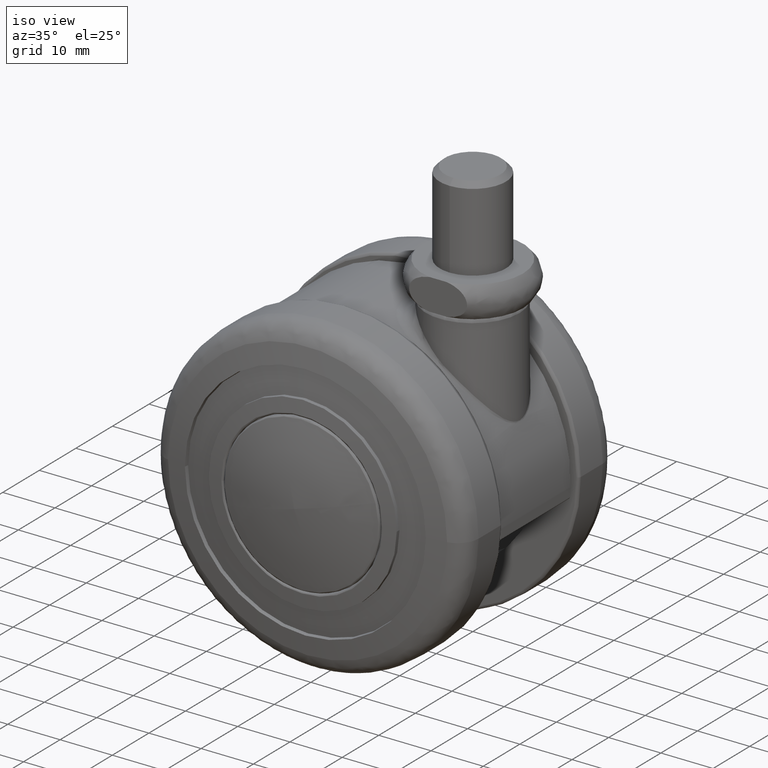
[diagram: clean part render]
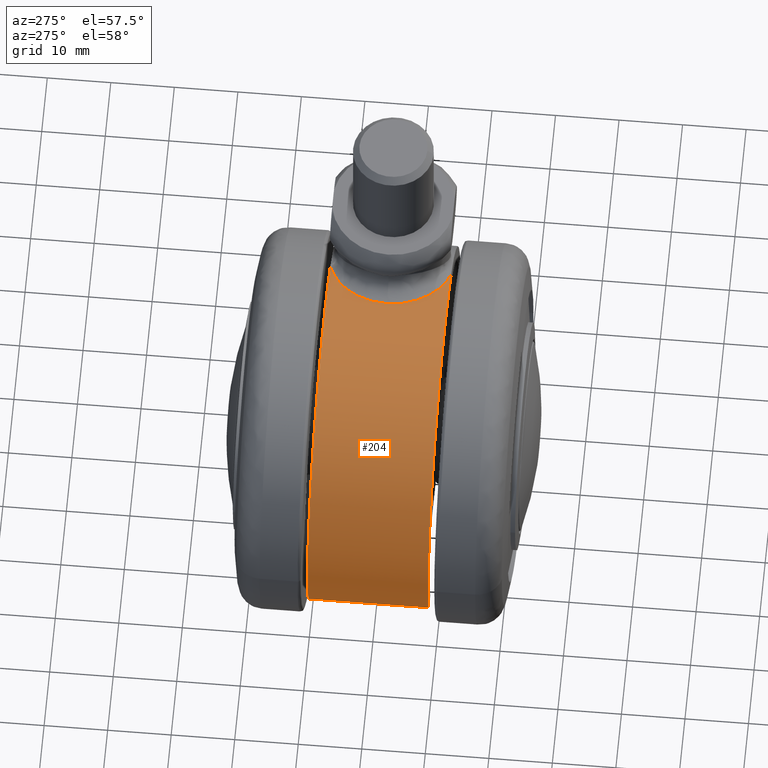
[diagram: tour spotlight — one face highlighted and labeled with its STEP entity id]
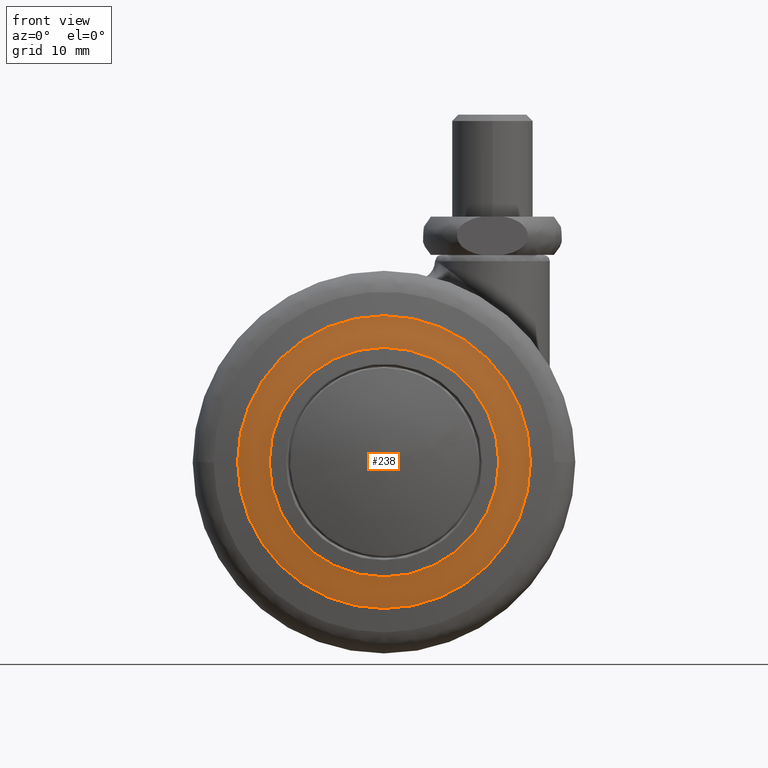
[diagram: tour spotlight — one face highlighted and labeled with its STEP entity id]
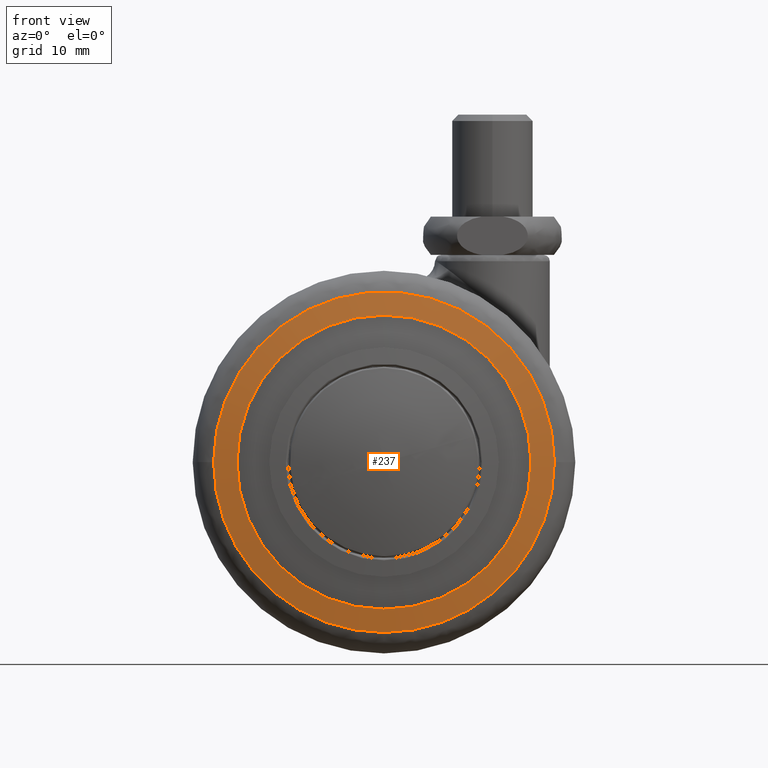
[diagram: tour spotlight — one face highlighted and labeled with its STEP entity id]
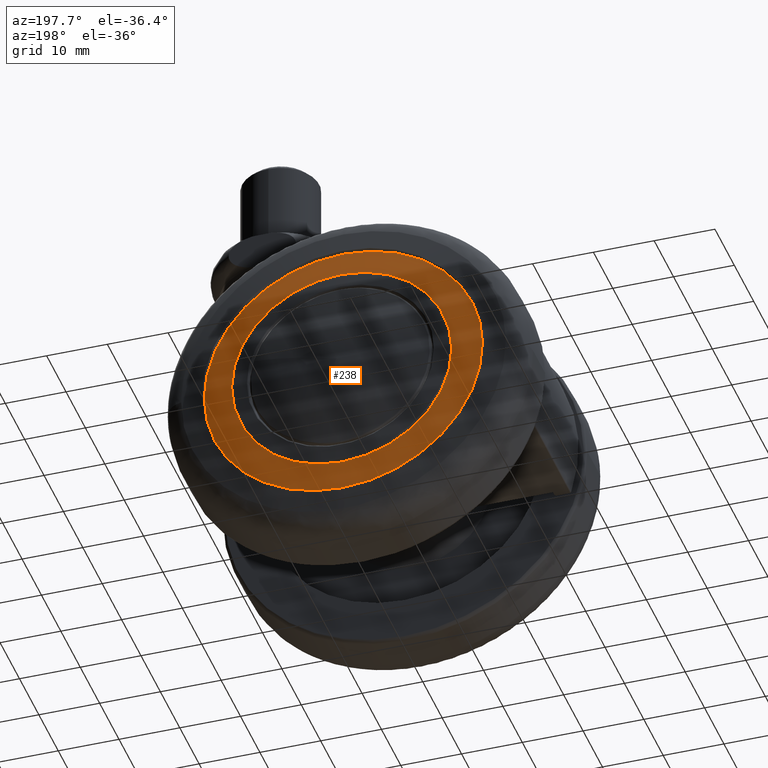
[diagram: tour spotlight — one face highlighted and labeled with its STEP entity id]
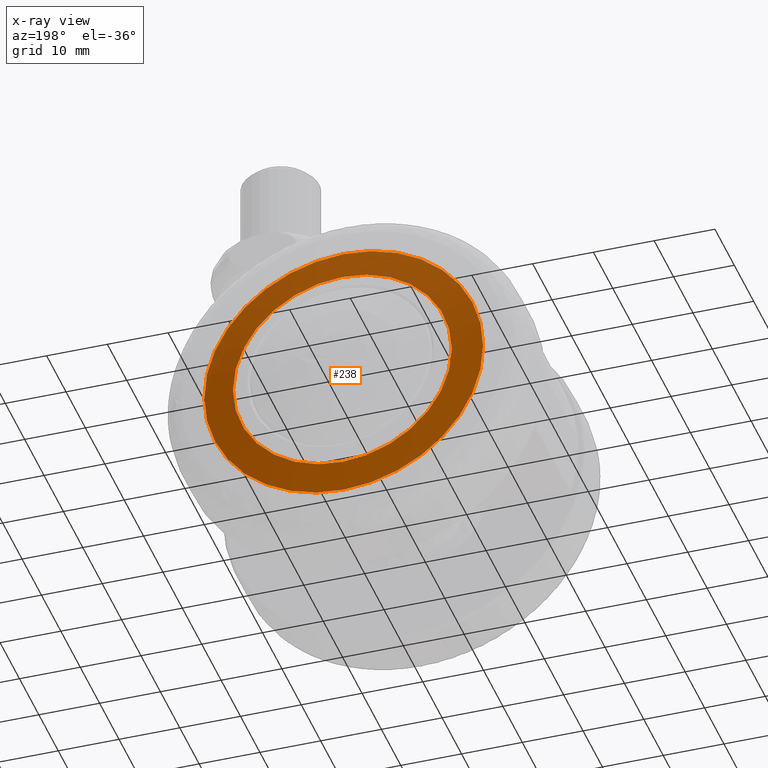
[diagram: x-ray of the same camera — body ghosted, this tour face saturated]
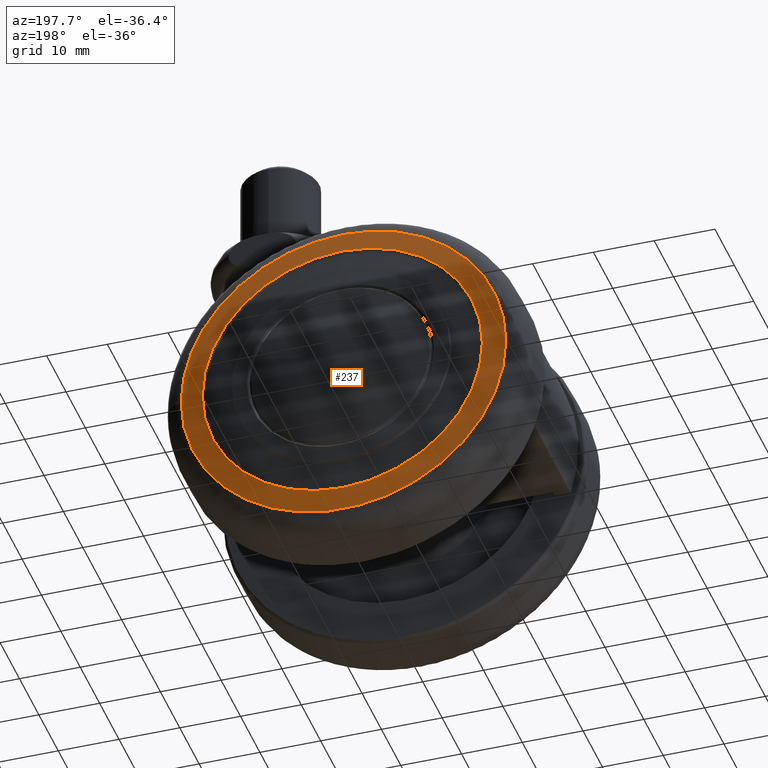
[diagram: tour spotlight — one face highlighted and labeled with its STEP entity id]
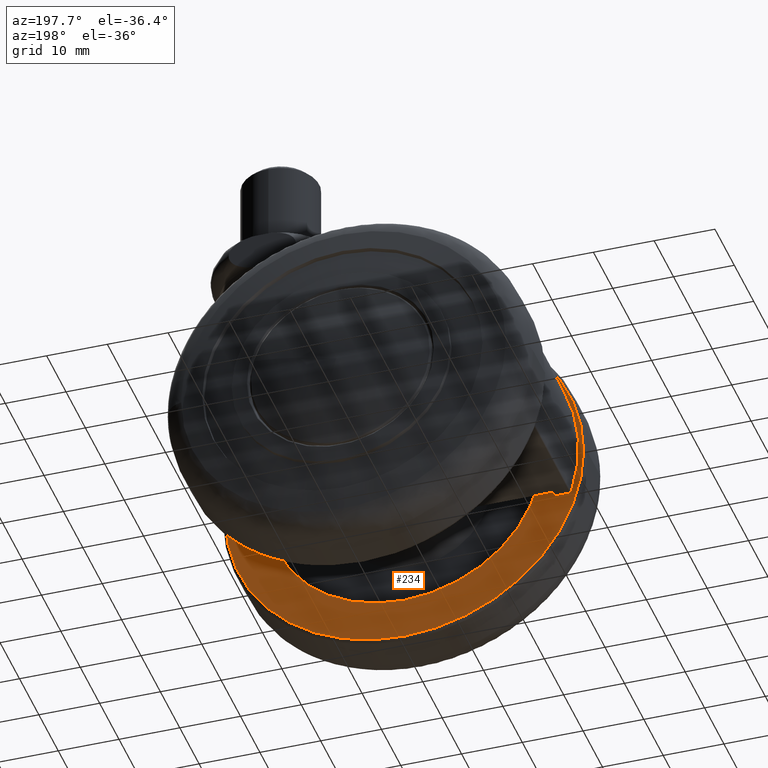
[diagram: tour spotlight — one face highlighted and labeled with its STEP entity id]
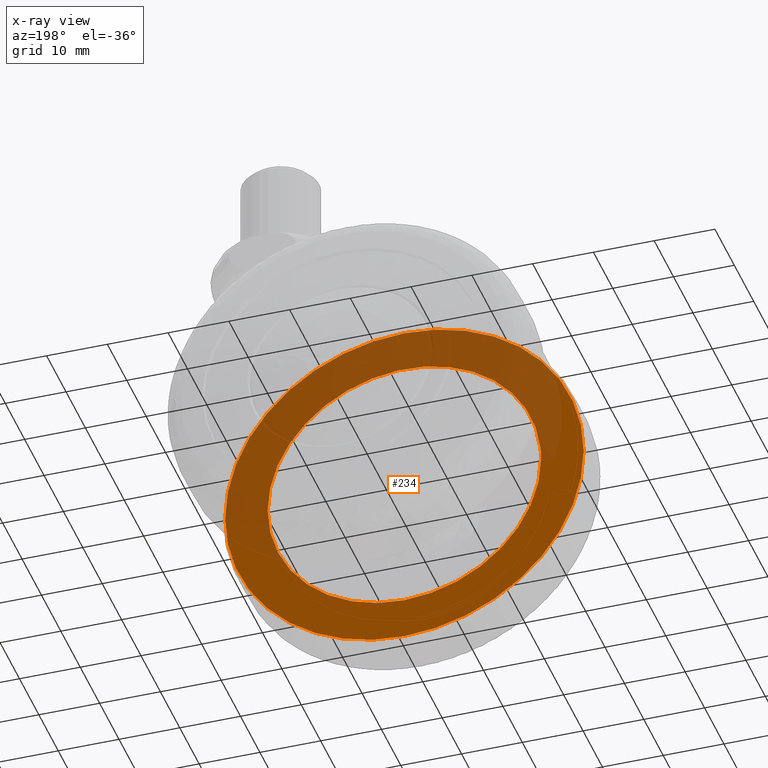
[diagram: x-ray of the same camera — body ghosted, this tour face saturated]
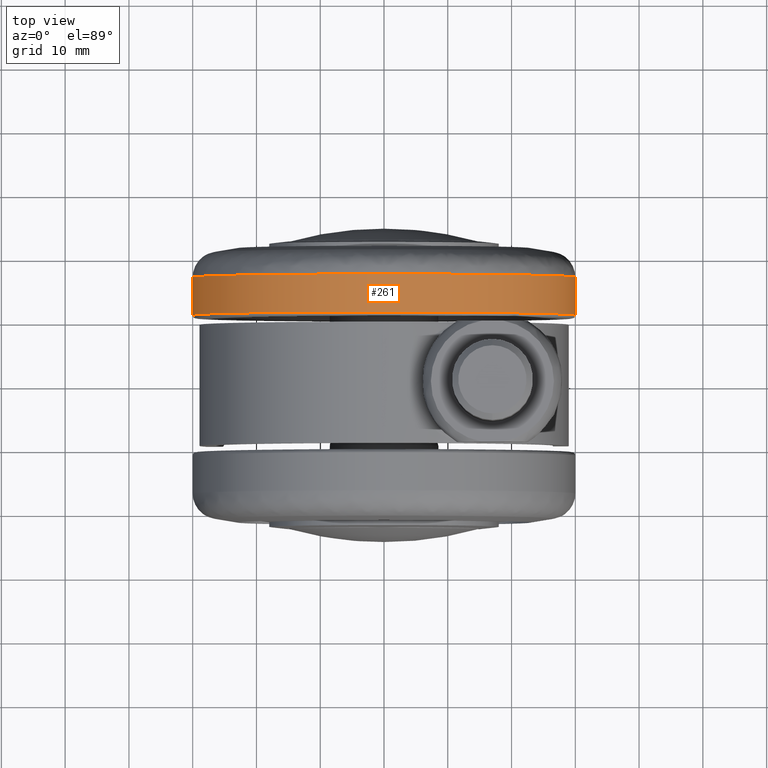
[diagram: tour spotlight — one face highlighted and labeled with its STEP entity id]
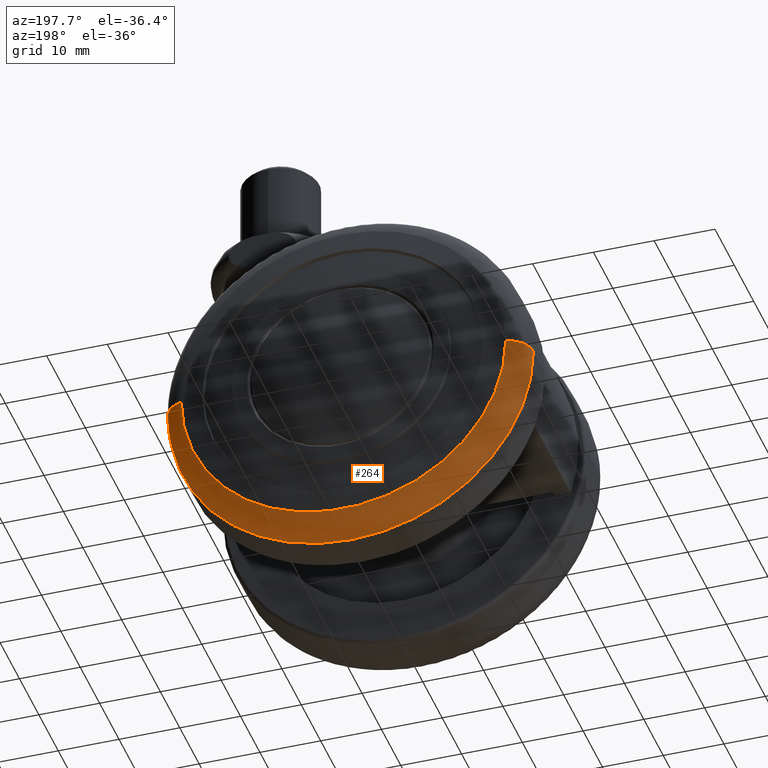
[diagram: tour spotlight — one face highlighted and labeled with its STEP entity id]
A machine part: a face-by-face anatomy tour. The part has 185 B-rep faces; the first image is the clean iso view, then the 8 largest visible faces are spotlighted one at a time (largest first), each with its STEP entity span.

Face 1 — auxiliary view, entity #204. In plain terms, the highlighted cylindrical surface (partial cylindrical patch) has radius 29 mm, axis along (0, -1, 0).
Definition (entity closure, byte-faithful):
#204=ADVANCED_FACE('',(#770),#769,.T.);
#769=CYLINDRICAL_SURFACE('',#2835,2.90000000000E+01);
#770=FACE_OUTER_BOUND('',#2836,.T.);
#2832=CARTESIAN_POINT('',(0.00000000000E+00,0.00000000000E+00,0.00000000000E+00));
#2833=DIRECTION('',(-0.00000000000E+00,-1.00000000000E+00,0.00000000000E+00));
#2834=DIRECTION('',(1.00000000000E+00,-0.00000000000E+00,-0.00000000000E+00));
#2835=AXIS2_PLACEMENT_3D('',#2832,#2833,#2834);
#2836=EDGE_LOOP('',(#4646,#4647,#4648,#4649,#4650));
#4646=ORIENTED_EDGE('',*,*,#5128,.T.);
#4647=ORIENTED_EDGE('',*,*,#5227,.T.);
#4648=ORIENTED_EDGE('',*,*,#5123,.F.);
#4649=ORIENTED_EDGE('',*,*,#5223,.T.);
#4650=ORIENTED_EDGE('',*,*,#5091,.T.);
#5091=EDGE_CURVE('',#5442,#5443,#5444,.T.);
#5123=EDGE_CURVE('',#5657,#5664,#5665,.T.);
#5128=EDGE_CURVE('',#5443,#5692,#5699,.T.);
#5223=EDGE_CURVE('',#5657,#5442,#6330,.T.);
#5227=EDGE_CURVE('',#5692,#5664,#6354,.T.);
#5442=VERTEX_POINT('',#7774);
#5443=VERTEX_POINT('',#7775);
#5444=(BOUNDED_CURVE() B_SPLINE_CURVE(3,(#7776,#7777,#7778,#7779,#7780,#7781,#7782,#7783,#7784,#7785,#7786,#7787,#7788,#7789,#7790,#7791,#7792,#7793,#7794,#7795,#7796,#7797,#7798,#7799,#7800,#7801,#7802,#7803,#7804,#7805,#7806,#7807,#7808,#7809,#7810,#7811,#7812,#7813,#7814,#7815,#7816,#7817,#7818,#7819,#7820,#7821,#7822,#7823,#7824,#7825),.UNSPECIFIED.,.F.,.F.) B_SPLINE_CURVE_WITH_KNOTS((4,2,2,2,2,2,2,2,2,2,2,2,2,1,1,2,2,1,1,2,2,1,1,1,2,2,1,1,1,4),(4.98903402995E-01,5.30221940308E-01,5.61540477621E-01,5.77199746277E-01,5.92859014933E-01,6.24177552246E-01,6.39836820903E-01,6.55496089559E-01,6.86814626872E-01,7.02473895528E-01,7.18133164185E-01,7.49451701497E-01,7.57281335826E-01,7.65110970154E-01,7.80770238810E-01,8.12088776123E-01,8.19918410451E-01,8.27748044780E-01,8.43407313436E-01,8.74725850749E-01,8.78640667913E-01,8.82555485077E-01,8.90385119405E-01,9.06044388062E-01,9.37362925374E-01,9.41277742538E-01,9.45192559703E-01,9.53022194031E-01,9.68681462687E-01,1.00000000000E+00),.UNSPECIFIED.) CURVE() GEOMETRIC_REPRESENTATION_ITEM() RATIONAL_B_SPLINE_CURVE((1.00000000000E+00,1.00000000000E+00,1.00000000000E+00,1.00000000000E+00,1.00000000000E+00,1.00000000000E+00,1.00000000000E+00,1.00000000000E+00,1.00000000000E+00,1.00000000000E+00,1.00000000000E+00,1.00000000000E+00,1.00000000000E+00,1.00000000000E+00,1.00000000000E+00,1.00000000000E+00,1.00000000000E+00,1.00000000000E+00,1.00000000000E+00,1.00000000000E+00,1.00000000000E+00,1.00000000000E+00,1.00000000000E+00,1.00000000000E+00,1.00000000000E+00,1.00000000000E+00,1.00000000000E+00,1.00000000000E+00,1.00000000000E+00,1.00000000000E+00,1.00000000000E+00,1.00000000000E+00,1.00000000000E+00,1.00000000000E+00,1.00000000000E+00,1.00000000000E+00,1.00000000000E+00,1.00000000000E+00,1.00000000000E+00,1.00000000000E+00,1.00000000000E+00,1.00000000000E+00,1.00000000000E+00,1.00000000000E+00,1.00000000000E+00,1.00000000000E+00,1.00000000000E+00,1.00000000000E+00,1.00000000000E+00,1.00000000000E+00)) REPRESENTATION_ITEM('') );
#5657=VERTEX_POINT('',#8080);
#5664=VERTEX_POINT('',#8085);
#5665=CIRCLE('',#8089,2.90000000000E+01);
#5692=VERTEX_POINT('',#8104);
#5699=CIRCLE('',#8112,2.90000000000E+01);
#6330=(BOUNDED_CURVE() B_SPLINE_CURVE(3,(#8615,#8616,#8617,#8618,#8619,#8620,#8621,#8622,#8623,#8624,#8625,#8626,#8627,#8628,#8629,#8630,#8631,#8632,#8633,#8634,#8635,#8636,#8637,#8638,#8639,#8640,#8641,#8642,#8643,#8644,#8645,#8646,#8647,#8648,#8649,#8650,#8651,#8652,#8653,#8654,#8655,#8656,#8657,#8658,#8659),.UNSPECIFIED.,.F.,.F.) B_SPLINE_CURVE_WITH_KNOTS((4,2,2,1,1,1,1,2,2,1,1,1,2,2,1,1,1,2,2,1,2,2,2,2,2,2,2,4),(0.00000000000E+00,6.23629253744E-02,6.43117667923E-02,6.62606082103E-02,7.01582910462E-02,7.79536567180E-02,9.35443880616E-02,1.24725850749E-01,1.28623533585E-01,1.32521216421E-01,1.40316582092E-01,1.55907313436E-01,1.87088776123E-01,1.90986458959E-01,1.94884141795E-01,2.02679507467E-01,2.18270238810E-01,2.49451701497E-01,2.57247067169E-01,2.65042432841E-01,2.80633164185E-01,3.11814626872E-01,3.42996089559E-01,3.74177552246E-01,3.89768283590E-01,4.05359014933E-01,4.36540477621E-01,4.98903402995E-01),.UNSPECIFIED.) CURVE() GEOMETRIC_REPRESENTATION_ITEM() RATIONAL_B_SPLINE_CURVE((1.00000000000E+00,1.00000000000E+00,1.00000000000E+00,1.00000000000E+00,1.00000000000E+00,1.00000000000E+00,1.00000000000E+00,1.00000000000E+00,1.00000000000E+00,1.00000000000E+00,1.00000000000E+00,1.00000000000E+00,1.00000000000E+00,1.00000000000E+00,1.00000000000E+00,1.00000000000E+00,1.00000000000E+00,1.00000000000E+00,1.00000000000E+00,1.00000000000E+00,1.00000000000E+00,1.00000000000E+00,1.00000000000E+00,1.00000000000E+00,1.00000000000E+00,1.00000000000E+00,1.00000000000E+00,1.00000000000E+00,1.00000000000E+00,1.00000000000E+00,1.00000000000E+00,1.00000000000E+00,1.00000000000E+00,1.00000000000E+00,1.00000000000E+00,1.00000000000E+00,1.00000000000E+00,1.00000000000E+00,1.00000000000E+00,1.00000000000E+00,1.00000000000E+00,1.00000000000E+00,1.00000000000E+00,1.00000000000E+00,1.00000000000E+00)) REPRESENTATION_ITEM('') );
#6354=LINE('',#8672,#8673);
#7774=CARTESIAN_POINT('',(4.53139016589E+00,-5.18244260164E-02,2.86437864670E+01));
#7775=CARTESIAN_POINT('',(1.24260205401E+01,9.50000000000E+00,2.62029390248E+01));
#7776=CARTESIAN_POINT('',(4.53139016589E+00,-5.18244260164E-02,2.86437864670E+01));
#7777=CARTESIAN_POINT('',(4.52973208850E+00,2.56918385008E-01,2.86440487715E+01));
#7778=CARTESIAN_POINT('',(4.54274035119E+00,5.67600131728E-01,2.86420023255E+01));
#7779=CARTESIAN_POINT('',(4.59815020965E+00,1.18536873685E+00,2.86331591300E+01));
#7780=CARTESIAN_POINT('',(4.64053911768E+00,1.49365601546E+00,2.86263643871E+01));
#7781=CARTESIAN_POINT('',(4.72610032112E+00,1.95519139744E+00,2.86123192189E+01));
#7782=CARTESIAN_POINT('',(4.75730822862E+00,2.10396648984E+00,2.86071542477E+01));
#7783=CARTESIAN_POINT('',(4.82720659659E+00,2.40286076700E+00,2.85954425077E+01));
#7784=CARTESIAN_POINT('',(4.86556957764E+00,2.55120367352E+00,2.85889494176E+01));
#7785=CARTESIAN_POINT('',(4.99087794523E+00,2.99291969694E+00,2.85674346383E+01));
#7786=CARTESIAN_POINT('',(5.08804462322E+00,3.28298011766E+00,2.85503847049E+01));
#7787=CARTESIAN_POINT('',(5.25411756775E+00,3.71144535642E+00,2.85201229802E+01));
#7788=CARTESIAN_POINT('',(5.31109086909E+00,3.84884843397E+00,2.85095795446E+01));
#7789=CARTESIAN_POINT('',(5.43243721787E+00,4.12371901964E+00,2.84867063365E+01));
#7790=CARTESIAN_POINT('',(5.49615374041E+00,4.25947796009E+00,2.84744959456E+01));
#7791=CARTESIAN_POINT('',(5.69639336041E+00,4.66172572428E+00,2.84353583390E+01));
#7792=CARTESIAN_POINT('',(5.84200884991E+00,4.92318549085E+00,2.84059304156E+01));
#7793=CARTESIAN_POINT('',(6.07841708900E+00,5.30531702640E+00,2.83559399992E+01));
#7794=CARTESIAN_POINT('',(6.15813255840E+00,5.42771918282E+00,2.83387476674E+01));
#7795=CARTESIAN_POINT('',(6.32404523824E+00,5.67015476458E+00,2.83021848589E+01));
#7796=CARTESIAN_POINT('',(6.40949920688E+00,5.78898673561E+00,2.82829712135E+01));
#7797=CARTESIAN_POINT('',(6.67329620085E+00,6.13832518916E+00,2.82223259282E+01));
#7798=CARTESIAN_POINT('',(6.85907685444E+00,6.36167421213E+00,2.81778937258E+01));
#7799=CARTESIAN_POINT('',(7.10346952694E+00,6.62893139159E+00,2.81166011470E+01));
#7800=CARTESIAN_POINT('',(7.15014168703E+00,6.67878233553E+00,2.81047677651E+01));
#7801=CARTESIAN_POINT('',(7.24695911699E+00,6.77995222260E+00,2.80799587043E+01));
#7802=CARTESIAN_POINT('',(7.39377174161E+00,6.92992747981E+00,2.80419385039E+01));
#7803=CARTESIAN_POINT('',(7.74737789148E+00,7.26741273284E+00,2.79473975036E+01));
#7804=CARTESIAN_POINT('',(8.06917993406E+00,7.53533092609E+00,2.78557409903E+01));
#7805=CARTESIAN_POINT('',(8.34745212752E+00,7.74673226447E+00,2.77727099175E+01));
#7806=CARTESIAN_POINT('',(8.40057882651E+00,7.78617364523E+00,2.77566848158E+01));
#7807=CARTESIAN_POINT('',(8.51008763400E+00,7.86572085714E+00,2.77233058102E+01));
#7808=CARTESIAN_POINT('',(8.67532122277E+00,7.98305397990E+00,2.76724099725E+01));
#7809=CARTESIAN_POINT('',(9.06759519990E+00,8.24291740063E+00,2.75477281753E+01));
#7810=CARTESIAN_POINT('',(9.41514083539E+00,8.44180513433E+00,2.74302391812E+01));
#7811=CARTESIAN_POINT('',(9.68120150102E+00,8.57904476401E+00,2.73363369947E+01));
#7812=CARTESIAN_POINT('',(9.70755051972E+00,8.59245463782E+00,2.73269892107E+01));
#7813=CARTESIAN_POINT('',(9.76332304760E+00,8.62050943274E+00,2.73071126171E+01));
#7814=CARTESIAN_POINT('',(9.84722935588E+00,8.66218721344E+00,2.72770651399E+01));
#7815=CARTESIAN_POINT('',(1.00447338104E+01,8.75660448673E+00,2.72053083372E+01));
#7816=CARTESIAN_POINT('',(1.04465564373E+01,8.93411550664E+00,2.70550663155E+01));
#7817=CARTESIAN_POINT('',(1.08023806468E+01,9.06685604937E+00,2.69142541514E+01));
#7818=CARTESIAN_POINT('',(1.10746407114E+01,9.15670557640E+00,2.68021156533E+01));
#7819=CARTESIAN_POINT('',(1.11007764407E+01,9.16519446828E+00,2.67912988042E+01));
#7820=CARTESIAN_POINT('',(1.11570741613E+01,9.18323438819E+00,2.67679028943E+01));
#7821=CARTESIAN_POINT('',(1.12416620853E+01,9.20993821193E+00,2.67325941489E+01));
#7822=CARTESIAN_POINT('',(1.14400149055E+01,9.26975474119E+00,2.66486911021E+01));
#7823=CARTESIAN_POINT('',(1.18405759153E+01,9.37941822850E+00,2.64747264489E+01));
#7824=CARTESIAN_POINT('',(1.21902835151E+01,9.45632480983E+00,2.63147308017E+01));
#7825=CARTESIAN_POINT('',(1.24260205401E+01,9.50000000000E+00,2.62029390248E+01));
#8080=CARTESIAN_POINT('',(1.24266166040E+01,-9.50000000000E+00,2.62026563496E+01));
#8085=CARTESIAN_POINT('',(-2.77911305775E+01,-9.50000000000E+00,-8.28571428571E+00));
#8086=CARTESIAN_POINT('',(0.00000000000E+00,-9.50000000000E+00,0.00000000000E+00));
#8087=DIRECTION('',(0.00000000000E+00,-1.00000000000E+00,0.00000000000E+00));
#8088=DIRECTION('',(1.00000000000E+00,-0.00000000000E+00,-0.00000000000E+00));
#8089=AXIS2_PLACEMENT_3D('',#8086,#8087,#8088);
#8104=CARTESIAN_POINT('',(-2.77911305775E+01,9.50000000000E+00,-8.28571428571E+00));
#8109=CARTESIAN_POINT('',(0.00000000000E+00,9.50000000000E+00,0.00000000000E+00));
#8110=DIRECTION('',(0.00000000000E+00,-1.00000000000E+00,0.00000000000E+00));
#8111=DIRECTION('',(1.00000000000E+00,-0.00000000000E+00,-0.00000000000E+00));
#8112=AXIS2_PLACEMENT_3D('',#8109,#8110,#8111);
#8615=CARTESIAN_POINT('',(1.24266166040E+01,-9.50000000000E+00,2.62026563496E+01));
#8616=CARTESIAN_POINT('',(1.19563291877E+01,-9.41431901399E+00,2.64256900978E+01));
#8617=CARTESIAN_POINT('',(1.15027345255E+01,-9.30045082081E+00,2.66253325769E+01));
#8618=CARTESIAN_POINT('',(1.10543944322E+01,-9.15395618920E+00,2.68104565383E+01));
#8619=CARTESIAN_POINT('',(1.10383998335E+01,-9.14869027365E+00,2.68170466138E+01));
#8620=CARTESIAN_POINT('',(1.10085731064E+01,-9.13878231399E+00,2.68293044661E+01));
#8621=CARTESIAN_POINT('',(1.09638727337E+01,-9.12381091317E+00,2.68476313072E+01));
#8622=CARTESIAN_POINT('',(1.08598511145E+01,-9.08811141533E+00,2.68899761244E+01));
#8623=CARTESIAN_POINT('',(1.06529345668E+01,-9.01364750265E+00,2.69730084791E+01));
#8624=CARTESIAN_POINT('',(1.02436841890E+01,-8.85246000924E+00,2.71325554913E+01));
#8625=CARTESIAN_POINT('',(9.90100873275E+00,-8.69328272679E+00,2.72585181473E+01));
#8626=CARTESIAN_POINT('',(9.64828820135E+00,-8.56339147805E+00,2.73479692492E+01));
#8627=CARTESIAN_POINT('',(9.61750772901E+00,-8.54738012151E+00,2.73588106257E+01));
#8628=CARTESIAN_POINT('',(9.55860692520E+00,-8.51633616634E+00,2.73794449801E+01));
#8629=CARTESIAN_POINT('',(9.47054520810E+00,-8.46933925418E+00,2.74101349886E+01));
#8630=CARTESIAN_POINT('',(9.26710547397E+00,-8.35666293665E+00,2.74799361700E+01));
#8631=CARTESIAN_POINT('',(8.86846333021E+00,-8.11924287828E+00,2.76124761933E+01));
#8632=CARTESIAN_POINT('',(8.54117943430E+00,-7.89505295974E+00,2.77145636203E+01));
#8633=CARTESIAN_POINT('',(8.30317289633E+00,-7.71656701516E+00,2.77859331692E+01));
#8634=CARTESIAN_POINT('',(8.27457424704E+00,-7.69488140064E+00,2.77944643151E+01));
#8635=CARTESIAN_POINT('',(8.21948276031E+00,-7.65259689029E+00,2.78108059697E+01));
#8636=CARTESIAN_POINT('',(8.13722608143E+00,-7.58872377398E+00,2.78350719499E+01));
#8637=CARTESIAN_POINT('',(7.94796785620E+00,-7.43656204713E+00,2.78899922227E+01));
#8638=CARTESIAN_POINT('',(7.58022600455E+00,-7.11974077155E+00,2.79932298645E+01));
#8639=CARTESIAN_POINT('',(7.28374759695E+00,-6.82675484069E+00,2.80710717603E+01));
#8640=CARTESIAN_POINT('',(7.04733025546E+00,-6.57069721080E+00,2.81307218948E+01));
#8641=CARTESIAN_POINT('',(6.99778485662E+00,-6.51581155958E+00,2.81430883336E+01));
#8642=CARTESIAN_POINT('',(6.90238657343E+00,-6.40756709136E+00,2.81666375956E+01));
#8643=CARTESIAN_POINT('',(6.76105775835E+00,-6.24341630611E+00,2.82011390323E+01));
#8644=CARTESIAN_POINT('',(6.62506110857E+00,-6.07391327206E+00,2.82332565354E+01));
#8645=CARTESIAN_POINT('',(6.36024097497E+00,-5.72777087225E+00,2.82945254756E+01));
#8646=CARTESIAN_POINT('',(6.19326044325E+00,-5.48749416341E+00,2.83314203527E+01));
#8647=CARTESIAN_POINT('',(5.87871896063E+00,-4.98791052781E+00,2.83983541337E+01));
#8648=CARTESIAN_POINT('',(5.73128914260E+00,-4.72822215291E+00,2.84283506590E+01));
#8649=CARTESIAN_POINT('',(5.46224388571E+00,-4.19824570458E+00,2.84812690757E+01));
#8650=CARTESIAN_POINT('',(5.33967153051E+00,-3.92645924963E+00,2.85043949889E+01));
#8651=CARTESIAN_POINT('',(5.17388775483E+00,-3.50858222103E+00,2.85347865234E+01));
#8652=CARTESIAN_POINT('',(5.12005475292E+00,-3.36330582561E+00,2.85444842309E+01));
#8653=CARTESIAN_POINT('',(5.02079725211E+00,-3.07462413303E+00,2.85621101397E+01));
#8654=CARTESIAN_POINT('',(4.97450443747E+00,-2.92904688759E+00,2.85701978474E+01));
#8655=CARTESIAN_POINT('',(4.84566118064E+00,-2.48860595384E+00,2.85924319615E+01));
#8656=CARTESIAN_POINT('',(4.77314738395E+00,-2.19003306809E+00,2.86045564380E+01));
#8657=CARTESIAN_POINT('',(4.59591273799E+00,-1.27947762112E+00,2.86337550098E+01));
#8658=CARTESIAN_POINT('',(4.53469353421E+00,-6.66607434378E-01,2.86432638806E+01));
#8659=CARTESIAN_POINT('',(4.53139016589E+00,-5.18244260164E-02,2.86437864670E+01));
#8672=CARTESIAN_POINT('',(-2.77911305775E+01,9.50000000000E+00,-8.28571428571E+00));
#8673=VECTOR('',#8674,1.90000000000E+01);
#8674=DIRECTION('',(0.00000000000E+00,-1.00000000000E+00,0.00000000000E+00));

Face 2 — front view, entity #238. In plain terms, the highlighted spherical surface has radius 148.8 mm.
Definition (entity closure, byte-faithful):
#238=ADVANCED_FACE('',(#1116,#1117),#1115,.T.);
#1115=SPHERICAL_SURFACE('',#3527,1.48800000000E+02);
#1116=FACE_OUTER_BOUND('',#3528,.T.);
#1117=FACE_BOUND('',#3529,.T.);
#3524=CARTESIAN_POINT('',(0.00000000000E+00,0.00000000000E+00,-1.34740000000E+02));
#3525=DIRECTION('',(-1.00000000000E+00,0.00000000000E+00,0.00000000000E+00));
#3526=DIRECTION('',(-0.00000000000E+00,-1.54233870968E-01,9.88034368353E-01));
#3527=AXIS2_PLACEMENT_3D('',#3524,#3525,#3526);
#3528=EDGE_LOOP('',(#4789,#4790));
#3529=EDGE_LOOP('',(#4791,#4792,#4793));
#4789=ORIENTED_EDGE('',*,*,#5309,.T.);
#4790=ORIENTED_EDGE('',*,*,#5310,.T.);
#4791=ORIENTED_EDGE('',*,*,#5311,.F.);
#4792=ORIENTED_EDGE('',*,*,#5312,.F.);
#4793=ORIENTED_EDGE('',*,*,#5313,.F.);
#5309=EDGE_CURVE('',#6902,#6903,#6904,.T.);
#5310=EDGE_CURVE('',#6903,#6902,#6910,.T.);
#5311=EDGE_CURVE('',#6916,#6917,#6918,.T.);
#5312=EDGE_CURVE('',#6924,#6916,#6925,.T.);
#5313=EDGE_CURVE('',#6917,#6924,#6931,.T.);
#6902=VERTEX_POINT('',#9029);
#6903=VERTEX_POINT('',#9030);
#6904=CIRCLE('',#9034,2.29500000000E+01);
#6910=CIRCLE('',#9038,2.29500000000E+01);
#6916=VERTEX_POINT('',#9039);
#6917=VERTEX_POINT('',#9040);
#6918=CIRCLE('',#9044,1.80000000000E+01);
#6924=VERTEX_POINT('',#9045);
#6925=CIRCLE('',#9049,1.80000000000E+01);
#6931=CIRCLE('',#9053,1.80000000000E+01);
#9029=CARTESIAN_POINT('',(2.29500000000E+01,-5.62777154346E-15,1.22795140109E+01));
#9030=CARTESIAN_POINT('',(-2.29500000000E+01,1.18423789293E-15,1.22795140109E+01));
#9031=CARTESIAN_POINT('',(0.00000000000E+00,0.00000000000E+00,1.22795140109E+01));
#9032=DIRECTION('',(0.00000000000E+00,0.00000000000E+00,1.00000000000E+00));
#9033=DIRECTION('',(1.00000000000E+00,-1.22758168254E-16,-0.00000000000E+00));
#9034=AXIS2_PLACEMENT_3D('',#9031,#9032,#9033);
#9035=CARTESIAN_POINT('',(0.00000000000E+00,0.00000000000E+00,1.22795140109E+01));
#9036=DIRECTION('',(0.00000000000E+00,0.00000000000E+00,1.00000000000E+00));
#9037=DIRECTION('',(1.00000000000E+00,-1.22758168254E-16,-0.00000000000E+00));
#9038=AXIS2_PLACEMENT_3D('',#9035,#9036,#9037);
#9039=CARTESIAN_POINT('',(-1.80000000000E+01,-9.85225253705E-11,1.29672780874E+01));
#9040=CARTESIAN_POINT('',(-2.20429143688E-15,-1.80000000000E+01,1.29672780874E+01));
#9041=CARTESIAN_POINT('',(0.00000000000E+00,0.00000000000E+00,1.29672780874E+01));
#9042=DIRECTION('',(0.00000000000E+00,-0.00000000000E+00,1.00000000000E+00));
#9043=DIRECTION('',(-0.00000000000E+00,-1.00000000000E+00,-0.00000000000E+00));
#9044=AXIS2_PLACEMENT_3D('',#9041,#9042,#9043);
#9045=CARTESIAN_POINT('',(1.79999999031E+01,1.86805382371E-03,1.29672780874E+01));
#9046=CARTESIAN_POINT('',(0.00000000000E+00,0.00000000000E+00,1.29672780874E+01));
#9047=DIRECTION('',(0.00000000000E+00,-0.00000000000E+00,1.00000000000E+00));
#9048=DIRECTION('',(-0.00000000000E+00,-1.00000000000E+00,-0.00000000000E+00));
#9049=AXIS2_PLACEMENT_3D('',#9046,#9047,#9048);
#9050=CARTESIAN_POINT('',(0.00000000000E+00,0.00000000000E+00,1.29672780874E+01));
#9051=DIRECTION('',(0.00000000000E+00,-0.00000000000E+00,1.00000000000E+00));
#9052=DIRECTION('',(-0.00000000000E+00,-1.00000000000E+00,-0.00000000000E+00));
#9053=AXIS2_PLACEMENT_3D('',#9050,#9051,#9052);

Face 3 — front view, entity #237. In plain terms, the highlighted spherical surface has radius 150 mm.
Definition (entity closure, byte-faithful):
#237=ADVANCED_FACE('',(#1105,#1106),#1104,.T.);
#1104=SPHERICAL_SURFACE('',#3521,1.50000000000E+02);
#1105=FACE_OUTER_BOUND('',#3522,.T.);
#1106=FACE_BOUND('',#3523,.T.);
#3518=CARTESIAN_POINT('',(0.00000000000E+00,0.00000000000E+00,-1.35210000000E+02));
#3519=DIRECTION('',(-1.00000000000E+00,0.00000000000E+00,0.00000000000E+00));
#3520=DIRECTION('',(-0.00000000000E+00,-1.78082191781E-01,9.84015616223E-01));
#3521=AXIS2_PLACEMENT_3D('',#3518,#3519,#3520);
#3522=EDGE_LOOP('',(#4783,#4784,#4785));
#3523=EDGE_LOOP('',(#4786,#4787,#4788));
#4783=ORIENTED_EDGE('',*,*,#5303,.T.);
#4784=ORIENTED_EDGE('',*,*,#5304,.T.);
#4785=ORIENTED_EDGE('',*,*,#5305,.T.);
#4786=ORIENTED_EDGE('',*,*,#5306,.F.);
#4787=ORIENTED_EDGE('',*,*,#5307,.F.);
#4788=ORIENTED_EDGE('',*,*,#5308,.F.);
#5303=EDGE_CURVE('',#6860,#6861,#6862,.T.);
#5304=EDGE_CURVE('',#6861,#6868,#6869,.T.);
#5305=EDGE_CURVE('',#6868,#6860,#6875,.T.);
#5306=EDGE_CURVE('',#6881,#6882,#6883,.T.);
#5307=EDGE_CURVE('',#6889,#6881,#6890,.T.);
#5308=EDGE_CURVE('',#6882,#6889,#6896,.T.);
#6860=VERTEX_POINT('',#8999);
#6861=VERTEX_POINT('',#9000);
#6862=CIRCLE('',#9004,2.67123287671E+01);
#6868=VERTEX_POINT('',#9005);
#6869=CIRCLE('',#9009,2.67123287671E+01);
#6875=CIRCLE('',#9013,2.67123287671E+01);
#6881=VERTEX_POINT('',#9014);
#6882=VERTEX_POINT('',#9015);
#6883=CIRCLE('',#9019,2.30600000000E+01);
#6889=VERTEX_POINT('',#9020);
#6890=CIRCLE('',#9024,2.30600000000E+01);
#6896=CIRCLE('',#9028,2.30600000000E+01);
#8999=CARTESIAN_POINT('',(-1.43418453520E-15,-2.67123287671E+01,1.23923424334E+01));
#9000=CARTESIAN_POINT('',(2.67123287671E+01,-6.83950822632E-10,1.23923424334E+01));
#9001=CARTESIAN_POINT('',(0.00000000000E+00,0.00000000000E+00,1.23923424334E+01));
#9002=DIRECTION('',(-0.00000000000E+00,0.00000000000E+00,1.00000000000E+00));
#9003=DIRECTION('',(3.13691920983E-16,-1.00000000000E+00,0.00000000000E+00));
#9004=AXIS2_PLACEMENT_3D('',#9001,#9002,#9003);
#9005=CARTESIAN_POINT('',(-2.67123286233E+01,2.77215065779E-03,1.23923424334E+01));
#9006=CARTESIAN_POINT('',(0.00000000000E+00,0.00000000000E+00,1.23923424334E+01));
#9007=DIRECTION('',(-0.00000000000E+00,0.00000000000E+00,1.00000000000E+00));
#9008=DIRECTION('',(3.13691920983E-16,-1.00000000000E+00,0.00000000000E+00));
#9009=AXIS2_PLACEMENT_3D('',#9006,#9007,#9008);
#9010=CARTESIAN_POINT('',(0.00000000000E+00,0.00000000000E+00,1.23923424334E+01));
#9011=DIRECTION('',(-0.00000000000E+00,0.00000000000E+00,1.00000000000E+00));
#9012=DIRECTION('',(3.13691920983E-16,-1.00000000000E+00,0.00000000000E+00));
#9013=AXIS2_PLACEMENT_3D('',#9010,#9011,#9012);
#9014=CARTESIAN_POINT('',(2.30599998758E+01,-2.39318611887E-03,1.30068559915E+01));
#9015=CARTESIAN_POINT('',(7.05994889671E-15,2.30600000000E+01,1.30068559915E+01));
#9016=CARTESIAN_POINT('',(0.00000000000E+00,0.00000000000E+00,1.30068559915E+01));
#9017=DIRECTION('',(0.00000000000E+00,0.00000000000E+00,1.00000000000E+00));
#9018=DIRECTION('',(-6.12262731586E-17,1.00000000000E+00,0.00000000000E+00));
#9019=AXIS2_PLACEMENT_3D('',#9016,#9017,#9018);
#9020=CARTESIAN_POINT('',(-2.30600000000E+01,4.99496209898E-11,1.30068559915E+01));
#9021=CARTESIAN_POINT('',(0.00000000000E+00,0.00000000000E+00,1.30068559915E+01));
#9022=DIRECTION('',(0.00000000000E+00,0.00000000000E+00,1.00000000000E+00));
#9023=DIRECTION('',(-6.12262731586E-17,1.00000000000E+00,0.00000000000E+00));
#9024=AXIS2_PLACEMENT_3D('',#9021,#9022,#9023);
#9025=CARTESIAN_POINT('',(0.00000000000E+00,0.00000000000E+00,1.30068559915E+01));
#9026=DIRECTION('',(0.00000000000E+00,0.00000000000E+00,1.00000000000E+00));
#9027=DIRECTION('',(-6.12262731586E-17,1.00000000000E+00,0.00000000000E+00));
#9028=AXIS2_PLACEMENT_3D('',#9025,#9026,#9027);

Face 4 — auxiliary view, entity #238. An x-ray twin of the same camera follows (body ghosted, this face saturated) — the face is partly hidden behind the body. In plain terms, the highlighted spherical surface has radius 148.8 mm.
Definition (entity closure, byte-faithful):
#238=ADVANCED_FACE('',(#1116,#1117),#1115,.T.);
#1115=SPHERICAL_SURFACE('',#3527,1.48800000000E+02);
#1116=FACE_OUTER_BOUND('',#3528,.T.);
#1117=FACE_BOUND('',#3529,.T.);
#3524=CARTESIAN_POINT('',(0.00000000000E+00,0.00000000000E+00,-1.34740000000E+02));
#3525=DIRECTION('',(-1.00000000000E+00,0.00000000000E+00,0.00000000000E+00));
#3526=DIRECTION('',(-0.00000000000E+00,-1.54233870968E-01,9.88034368353E-01));
#3527=AXIS2_PLACEMENT_3D('',#3524,#3525,#3526);
#3528=EDGE_LOOP('',(#4789,#4790));
#3529=EDGE_LOOP('',(#4791,#4792,#4793));
#4789=ORIENTED_EDGE('',*,*,#5309,.T.);
#4790=ORIENTED_EDGE('',*,*,#5310,.T.);
#4791=ORIENTED_EDGE('',*,*,#5311,.F.);
#4792=ORIENTED_EDGE('',*,*,#5312,.F.);
#4793=ORIENTED_EDGE('',*,*,#5313,.F.);
#5309=EDGE_CURVE('',#6902,#6903,#6904,.T.);
#5310=EDGE_CURVE('',#6903,#6902,#6910,.T.);
#5311=EDGE_CURVE('',#6916,#6917,#6918,.T.);
#5312=EDGE_CURVE('',#6924,#6916,#6925,.T.);
#5313=EDGE_CURVE('',#6917,#6924,#6931,.T.);
#6902=VERTEX_POINT('',#9029);
#6903=VERTEX_POINT('',#9030);
#6904=CIRCLE('',#9034,2.29500000000E+01);
#6910=CIRCLE('',#9038,2.29500000000E+01);
#6916=VERTEX_POINT('',#9039);
#6917=VERTEX_POINT('',#9040);
#6918=CIRCLE('',#9044,1.80000000000E+01);
#6924=VERTEX_POINT('',#9045);
#6925=CIRCLE('',#9049,1.80000000000E+01);
#6931=CIRCLE('',#9053,1.80000000000E+01);
#9029=CARTESIAN_POINT('',(2.29500000000E+01,-5.62777154346E-15,1.22795140109E+01));
#9030=CARTESIAN_POINT('',(-2.29500000000E+01,1.18423789293E-15,1.22795140109E+01));
#9031=CARTESIAN_POINT('',(0.00000000000E+00,0.00000000000E+00,1.22795140109E+01));
#9032=DIRECTION('',(0.00000000000E+00,0.00000000000E+00,1.00000000000E+00));
#9033=DIRECTION('',(1.00000000000E+00,-1.22758168254E-16,-0.00000000000E+00));
#9034=AXIS2_PLACEMENT_3D('',#9031,#9032,#9033);
#9035=CARTESIAN_POINT('',(0.00000000000E+00,0.00000000000E+00,1.22795140109E+01));
#9036=DIRECTION('',(0.00000000000E+00,0.00000000000E+00,1.00000000000E+00));
#9037=DIRECTION('',(1.00000000000E+00,-1.22758168254E-16,-0.00000000000E+00));
#9038=AXIS2_PLACEMENT_3D('',#9035,#9036,#9037);
#9039=CARTESIAN_POINT('',(-1.80000000000E+01,-9.85225253705E-11,1.29672780874E+01));
#9040=CARTESIAN_POINT('',(-2.20429143688E-15,-1.80000000000E+01,1.29672780874E+01));
#9041=CARTESIAN_POINT('',(0.00000000000E+00,0.00000000000E+00,1.29672780874E+01));
#9042=DIRECTION('',(0.00000000000E+00,-0.00000000000E+00,1.00000000000E+00));
#9043=DIRECTION('',(-0.00000000000E+00,-1.00000000000E+00,-0.00000000000E+00));
#9044=AXIS2_PLACEMENT_3D('',#9041,#9042,#9043);
#9045=CARTESIAN_POINT('',(1.79999999031E+01,1.86805382371E-03,1.29672780874E+01));
#9046=CARTESIAN_POINT('',(0.00000000000E+00,0.00000000000E+00,1.29672780874E+01));
#9047=DIRECTION('',(0.00000000000E+00,-0.00000000000E+00,1.00000000000E+00));
#9048=DIRECTION('',(-0.00000000000E+00,-1.00000000000E+00,-0.00000000000E+00));
#9049=AXIS2_PLACEMENT_3D('',#9046,#9047,#9048);
#9050=CARTESIAN_POINT('',(0.00000000000E+00,0.00000000000E+00,1.29672780874E+01));
#9051=DIRECTION('',(0.00000000000E+00,-0.00000000000E+00,1.00000000000E+00));
#9052=DIRECTION('',(-0.00000000000E+00,-1.00000000000E+00,-0.00000000000E+00));
#9053=AXIS2_PLACEMENT_3D('',#9050,#9051,#9052);

Face 5 — auxiliary view, entity #237. In plain terms, the highlighted spherical surface has radius 150 mm.
Definition (entity closure, byte-faithful):
#237=ADVANCED_FACE('',(#1105,#1106),#1104,.T.);
#1104=SPHERICAL_SURFACE('',#3521,1.50000000000E+02);
#1105=FACE_OUTER_BOUND('',#3522,.T.);
#1106=FACE_BOUND('',#3523,.T.);
#3518=CARTESIAN_POINT('',(0.00000000000E+00,0.00000000000E+00,-1.35210000000E+02));
#3519=DIRECTION('',(-1.00000000000E+00,0.00000000000E+00,0.00000000000E+00));
#3520=DIRECTION('',(-0.00000000000E+00,-1.78082191781E-01,9.84015616223E-01));
#3521=AXIS2_PLACEMENT_3D('',#3518,#3519,#3520);
#3522=EDGE_LOOP('',(#4783,#4784,#4785));
#3523=EDGE_LOOP('',(#4786,#4787,#4788));
#4783=ORIENTED_EDGE('',*,*,#5303,.T.);
#4784=ORIENTED_EDGE('',*,*,#5304,.T.);
#4785=ORIENTED_EDGE('',*,*,#5305,.T.);
#4786=ORIENTED_EDGE('',*,*,#5306,.F.);
#4787=ORIENTED_EDGE('',*,*,#5307,.F.);
#4788=ORIENTED_EDGE('',*,*,#5308,.F.);
#5303=EDGE_CURVE('',#6860,#6861,#6862,.T.);
#5304=EDGE_CURVE('',#6861,#6868,#6869,.T.);
#5305=EDGE_CURVE('',#6868,#6860,#6875,.T.);
#5306=EDGE_CURVE('',#6881,#6882,#6883,.T.);
#5307=EDGE_CURVE('',#6889,#6881,#6890,.T.);
#5308=EDGE_CURVE('',#6882,#6889,#6896,.T.);
#6860=VERTEX_POINT('',#8999);
#6861=VERTEX_POINT('',#9000);
#6862=CIRCLE('',#9004,2.67123287671E+01);
#6868=VERTEX_POINT('',#9005);
#6869=CIRCLE('',#9009,2.67123287671E+01);
#6875=CIRCLE('',#9013,2.67123287671E+01);
#6881=VERTEX_POINT('',#9014);
#6882=VERTEX_POINT('',#9015);
#6883=CIRCLE('',#9019,2.30600000000E+01);
#6889=VERTEX_POINT('',#9020);
#6890=CIRCLE('',#9024,2.30600000000E+01);
#6896=CIRCLE('',#9028,2.30600000000E+01);
#8999=CARTESIAN_POINT('',(-1.43418453520E-15,-2.67123287671E+01,1.23923424334E+01));
#9000=CARTESIAN_POINT('',(2.67123287671E+01,-6.83950822632E-10,1.23923424334E+01));
#9001=CARTESIAN_POINT('',(0.00000000000E+00,0.00000000000E+00,1.23923424334E+01));
#9002=DIRECTION('',(-0.00000000000E+00,0.00000000000E+00,1.00000000000E+00));
#9003=DIRECTION('',(3.13691920983E-16,-1.00000000000E+00,0.00000000000E+00));
#9004=AXIS2_PLACEMENT_3D('',#9001,#9002,#9003);
#9005=CARTESIAN_POINT('',(-2.67123286233E+01,2.77215065779E-03,1.23923424334E+01));
#9006=CARTESIAN_POINT('',(0.00000000000E+00,0.00000000000E+00,1.23923424334E+01));
#9007=DIRECTION('',(-0.00000000000E+00,0.00000000000E+00,1.00000000000E+00));
#9008=DIRECTION('',(3.13691920983E-16,-1.00000000000E+00,0.00000000000E+00));
#9009=AXIS2_PLACEMENT_3D('',#9006,#9007,#9008);
#9010=CARTESIAN_POINT('',(0.00000000000E+00,0.00000000000E+00,1.23923424334E+01));
#9011=DIRECTION('',(-0.00000000000E+00,0.00000000000E+00,1.00000000000E+00));
#9012=DIRECTION('',(3.13691920983E-16,-1.00000000000E+00,0.00000000000E+00));
#9013=AXIS2_PLACEMENT_3D('',#9010,#9011,#9012);
#9014=CARTESIAN_POINT('',(2.30599998758E+01,-2.39318611887E-03,1.30068559915E+01));
#9015=CARTESIAN_POINT('',(7.05994889671E-15,2.30600000000E+01,1.30068559915E+01));
#9016=CARTESIAN_POINT('',(0.00000000000E+00,0.00000000000E+00,1.30068559915E+01));
#9017=DIRECTION('',(0.00000000000E+00,0.00000000000E+00,1.00000000000E+00));
#9018=DIRECTION('',(-6.12262731586E-17,1.00000000000E+00,0.00000000000E+00));
#9019=AXIS2_PLACEMENT_3D('',#9016,#9017,#9018);
#9020=CARTESIAN_POINT('',(-2.30600000000E+01,4.99496209898E-11,1.30068559915E+01));
#9021=CARTESIAN_POINT('',(0.00000000000E+00,0.00000000000E+00,1.30068559915E+01));
#9022=DIRECTION('',(0.00000000000E+00,0.00000000000E+00,1.00000000000E+00));
#9023=DIRECTION('',(-6.12262731586E-17,1.00000000000E+00,0.00000000000E+00));
#9024=AXIS2_PLACEMENT_3D('',#9021,#9022,#9023);
#9025=CARTESIAN_POINT('',(0.00000000000E+00,0.00000000000E+00,1.30068559915E+01));
#9026=DIRECTION('',(0.00000000000E+00,0.00000000000E+00,1.00000000000E+00));
#9027=DIRECTION('',(-6.12262731586E-17,1.00000000000E+00,0.00000000000E+00));
#9028=AXIS2_PLACEMENT_3D('',#9025,#9026,#9027);

Face 6 — auxiliary view, entity #234. An x-ray twin of the same camera follows (body ghosted, this face saturated) — the face is partly hidden behind the body. In plain terms, the highlighted planar face has unit normal (0, -1, 0).
Definition (entity closure, byte-faithful):
#234=ADVANCED_FACE('',(#1072,#1073),#1071,.F.);
#1071=PLANE('',#3503);
#1072=FACE_OUTER_BOUND('',#3504,.T.);
#1073=FACE_BOUND('',#3505,.T.);
#3500=CARTESIAN_POINT('',(-6.78500000000E+01,-6.10954988233E+01,2.00000000000E+00));
#3501=DIRECTION('',(0.00000000000E+00,0.00000000000E+00,1.00000000000E+00));
#3502=DIRECTION('',(1.00000000000E+00,0.00000000000E+00,0.00000000000E+00));
#3503=AXIS2_PLACEMENT_3D('',#3500,#3501,#3502);
#3504=EDGE_LOOP('',(#4769,#4770));
#3505=EDGE_LOOP('',(#4771,#4772,#4773));
#4769=ORIENTED_EDGE('',*,*,#5289,.T.);
#4770=ORIENTED_EDGE('',*,*,#5290,.T.);
#4771=ORIENTED_EDGE('',*,*,#5291,.F.);
#4772=ORIENTED_EDGE('',*,*,#5292,.F.);
#4773=ORIENTED_EDGE('',*,*,#5293,.F.);
#5289=EDGE_CURVE('',#6762,#6763,#6764,.T.);
#5290=EDGE_CURVE('',#6763,#6762,#6770,.T.);
#5291=EDGE_CURVE('',#6776,#6777,#6778,.T.);
#5292=EDGE_CURVE('',#6784,#6776,#6785,.T.);
#5293=EDGE_CURVE('',#6777,#6784,#6791,.T.);
#6762=VERTEX_POINT('',#8929);
#6763=VERTEX_POINT('',#8930);
#6764=CIRCLE('',#8934,2.95000000000E+01);
#6770=CIRCLE('',#8938,2.95000000000E+01);
#6776=VERTEX_POINT('',#8939);
#6777=VERTEX_POINT('',#8940);
#6778=CIRCLE('',#8944,2.25000000000E+01);
#6784=VERTEX_POINT('',#8945);
#6785=CIRCLE('',#8949,2.25000000000E+01);
#6791=CIRCLE('',#8953,2.25000000000E+01);
#8929=CARTESIAN_POINT('',(2.95000000000E+01,-3.07354836874E-17,2.00000000000E+00));
#8930=CARTESIAN_POINT('',(-2.95000000000E+01,-8.28966525053E-15,2.00000000000E+00));
#8931=CARTESIAN_POINT('',(0.00000000000E+00,0.00000000000E+00,2.00000000000E+00));
#8932=DIRECTION('',(0.00000000000E+00,0.00000000000E+00,-1.00000000000E+00));
#8933=DIRECTION('',(1.00000000000E+00,-1.23502516185E-16,-0.00000000000E+00));
#8934=AXIS2_PLACEMENT_3D('',#8931,#8932,#8933);
#8935=CARTESIAN_POINT('',(0.00000000000E+00,0.00000000000E+00,2.00000000000E+00));
#8936=DIRECTION('',(0.00000000000E+00,0.00000000000E+00,-1.00000000000E+00));
#8937=DIRECTION('',(1.00000000000E+00,-1.23502516185E-16,-0.00000000000E+00));
#8938=AXIS2_PLACEMENT_3D('',#8935,#8936,#8937);
#8939=CARTESIAN_POINT('',(-2.25000000000E+01,-8.03386126938E-08,2.00000000000E+00));
#8940=CARTESIAN_POINT('',(-2.23970834024E+01,2.14957090231E+00,2.00000000000E+00));
#8941=CARTESIAN_POINT('',(0.00000000000E+00,0.00000000000E+00,2.00000000000E+00));
#8942=DIRECTION('',(0.00000000000E+00,0.00000000000E+00,-1.00000000000E+00));
#8943=DIRECTION('',(-9.95425928997E-01,9.55364845470E-02,0.00000000000E+00));
#8944=AXIS2_PLACEMENT_3D('',#8941,#8942,#8943);
#8945=CARTESIAN_POINT('',(2.24999999999E+01,-5.45503734179E-05,2.00000000000E+00));
#8946=CARTESIAN_POINT('',(0.00000000000E+00,0.00000000000E+00,2.00000000000E+00));
#8947=DIRECTION('',(0.00000000000E+00,0.00000000000E+00,-1.00000000000E+00));
#8948=DIRECTION('',(-9.95425928997E-01,9.55364845470E-02,0.00000000000E+00));
#8949=AXIS2_PLACEMENT_3D('',#8946,#8947,#8948);
#8950=CARTESIAN_POINT('',(0.00000000000E+00,0.00000000000E+00,2.00000000000E+00));
#8951=DIRECTION('',(0.00000000000E+00,0.00000000000E+00,-1.00000000000E+00));
#8952=DIRECTION('',(-9.95425928997E-01,9.55364845470E-02,0.00000000000E+00));
#8953=AXIS2_PLACEMENT_3D('',#8950,#8951,#8952);

Face 7 — top view, entity #261. In plain terms, the highlighted cylindrical surface (partial cylindrical patch) has radius 30 mm, axis along (-0, -1, 0).
Definition (entity closure, byte-faithful):
#261=ADVANCED_FACE('',(#1348),#1347,.T.);
#1347=CYLINDRICAL_SURFACE('',#3944,3.00000000000E+01);
#1348=FACE_OUTER_BOUND('',#3945,.T.);
#3941=CARTESIAN_POINT('',(0.00000000000E+00,0.00000000000E+00,5.47813987732E+00));
#3942=DIRECTION('',(-0.00000000000E+00,-0.00000000000E+00,-1.00000000000E+00));
#3943=DIRECTION('',(1.00000000000E+00,1.22464679915E-16,0.00000000000E+00));
#3944=AXIS2_PLACEMENT_3D('',#3941,#3942,#3943);
#3945=EDGE_LOOP('',(#4890,#4891,#4892,#4893));
#4890=ORIENTED_EDGE('',*,*,#5350,.T.);
#4891=ORIENTED_EDGE('',*,*,#5354,.F.);
#4892=ORIENTED_EDGE('',*,*,#5355,.T.);
#4893=ORIENTED_EDGE('',*,*,#5356,.T.);
#5350=EDGE_CURVE('',#7168,#7169,#7170,.T.);
#5354=EDGE_CURVE('',#7194,#7169,#7195,.T.);
#5355=EDGE_CURVE('',#7194,#7201,#7202,.T.);
#5356=EDGE_CURVE('',#7201,#7168,#7208,.T.);
#7168=VERTEX_POINT('',#9195);
#7169=VERTEX_POINT('',#9196);
#7170=CIRCLE('',#9200,3.00000000000E+01);
#7194=VERTEX_POINT('',#9212);
#7195=(BOUNDED_CURVE() B_SPLINE_CURVE(1,(#9213,#9214),.UNSPECIFIED.,.F.,.F.) B_SPLINE_CURVE_WITH_KNOTS((2,2),(8.33333347523E-02,9.16666668865E-01),.UNSPECIFIED.) CURVE() GEOMETRIC_REPRESENTATION_ITEM() RATIONAL_B_SPLINE_CURVE((1.00000000000E+00,1.00000000000E+00)) REPRESENTATION_ITEM('') );
#7201=VERTEX_POINT('',#9215);
#7202=CIRCLE('',#9219,3.00000000000E+01);
#7208=(BOUNDED_CURVE() B_SPLINE_CURVE(1,(#9220,#9221),.UNSPECIFIED.,.F.,.F.) B_SPLINE_CURVE_WITH_KNOTS((2,2),(8.33333333333E-02,9.16666666667E-01),.UNSPECIFIED.) CURVE() GEOMETRIC_REPRESENTATION_ITEM() RATIONAL_B_SPLINE_CURVE((7.50000000000E-01,7.50000000000E-01)) REPRESENTATION_ITEM('') );
#9195=CARTESIAN_POINT('',(-3.00000000000E+01,2.36847578587E-15,2.50000000000E+00));
#9196=CARTESIAN_POINT('',(3.00000000000E+01,0.00000000000E+00,2.50000000000E+00));
#9197=CARTESIAN_POINT('',(0.00000000000E+00,0.00000000000E+00,2.50000000000E+00));
#9198=DIRECTION('',(0.00000000000E+00,0.00000000000E+00,1.00000000000E+00));
#9199=DIRECTION('',(1.00000000000E+00,-1.22460635382E-16,0.00000000000E+00));
#9200=AXIS2_PLACEMENT_3D('',#9197,#9198,#9199);
#9212=CARTESIAN_POINT('',(3.00000000000E+01,-2.36847578587E-15,8.45627996854E+00));
#9213=CARTESIAN_POINT('',(3.00000000000E+01,3.67394039744E-15,8.45627995840E+00));
#9214=CARTESIAN_POINT('',(3.00000000000E+01,3.67394039744E-15,2.49999998428E+00));
#9215=CARTESIAN_POINT('',(-3.00000000000E+01,3.67394039744E-15,8.45627996854E+00));
#9216=CARTESIAN_POINT('',(0.00000000000E+00,0.00000000000E+00,8.45627996854E+00));
#9217=DIRECTION('',(0.00000000000E+00,0.00000000000E+00,-1.00000000000E+00));
#9218=DIRECTION('',(-1.00000000000E+00,4.04453249757E-21,0.00000000000E+00));
#9219=AXIS2_PLACEMENT_3D('',#9216,#9217,#9218);
#9220=CARTESIAN_POINT('',(-3.00000000000E+01,-3.55271367880E-15,8.45627996854E+00));
#9221=CARTESIAN_POINT('',(-3.00000000000E+01,-3.55271367880E-15,2.50000000000E+00));

Face 8 — auxiliary view, entity #264. In plain terms, the highlighted face is a freeform B-spline surface patch.
Definition (entity closure, byte-faithful):
#264=ADVANCED_FACE('',(#1378),#1377,.T.);
#1377=( BOUNDED_SURFACE() B_SPLINE_SURFACE( 2,2,((#3977,#3978,#3979,#3980,#3981),(#3982,#3983,#3984,#3985,#3986),(#3987,#3988,#3989,#3990,#3991),(#3992,#3993,#3994,#3995,#3996),(#3997,#3998,#3999,#4000,#4001)), .UNSPECIFIED.,.F.,.F.,.F.) B_SPLINE_SURFACE_WITH_KNOTS((3,2,3),(3,2,3),(0.00000000000E+00,5.00000000000E-01,1.00000000000E+00),(0.00000000000E+00,5.00000000000E-01,1.00000000000E+00), .UNSPECIFIED. ) GEOMETRIC_REPRESENTATION_ITEM() RATIONAL_B_SPLINE_SURFACE(((1.00000000000E+00,7.07106781187E-01,1.00000000000E+00,7.07106781187E-01,1.00000000000E+00),(7.07106781187E-01,5.00000000000E-01,7.07106781187E-01,5.00000000000E-01,7.07106781187E-01),(1.00000000000E+00,7.07106781187E-01,1.00000000000E+00,7.07106781187E-01,1.00000000000E+00),(7.07106781187E-01,5.00000000000E-01,7.07106781187E-01,5.00000000000E-01,7.07106781187E-01),(1.00000000000E+00,7.07106781187E-01,1.00000000000E+00,7.07106781187E-01,1.00000000000E+00))) REPRESENTATION_ITEM('') SURFACE() );
#1378=FACE_OUTER_BOUND('',#4002,.T.);
#3977=CARTESIAN_POINT('',(-2.20000000000E+01,-8.89797149471E-20,8.45627996854E+00));
#3978=CARTESIAN_POINT('',(-2.20000000000E+01,-8.89797149471E-20,1.24562799685E+01));
#3979=CARTESIAN_POINT('',(-2.60000000000E+01,-1.05157844937E-19,1.24562799685E+01));
#3980=CARTESIAN_POINT('',(-3.00000000000E+01,-1.21335974928E-19,1.24562799685E+01));
#3981=CARTESIAN_POINT('',(-3.00000000000E+01,-1.21335974928E-19,8.45627996854E+00));
#3982=CARTESIAN_POINT('',(-2.20000000000E+01,2.20000000000E+01,8.45627996854E+00));
#3983=CARTESIAN_POINT('',(-2.20000000000E+01,2.20000000000E+01,1.24562799685E+01));
#3984=CARTESIAN_POINT('',(-2.60000000000E+01,2.60000000000E+01,1.24562799685E+01));
#3985=CARTESIAN_POINT('',(-3.00000000000E+01,3.00000000000E+01,1.24562799685E+01));
#3986=CARTESIAN_POINT('',(-3.00000000000E+01,3.00000000000E+01,8.45627996854E+00));
#3987=CARTESIAN_POINT('',(-1.34720045878E-15,2.20000000000E+01,8.45627996854E+00));
#3988=CARTESIAN_POINT('',(-1.34720045878E-15,2.20000000000E+01,1.24562799685E+01));
#3989=CARTESIAN_POINT('',(-1.59214599674E-15,2.60000000000E+01,1.24562799685E+01));
#3990=CARTESIAN_POINT('',(-1.83709153470E-15,3.00000000000E+01,1.24562799685E+01));
#3991=CARTESIAN_POINT('',(-1.83709153470E-15,3.00000000000E+01,8.45627996854E+00));
#3992=CARTESIAN_POINT('',(2.20000000000E+01,2.20000000000E+01,8.45627996854E+00));
#3993=CARTESIAN_POINT('',(2.20000000000E+01,2.20000000000E+01,1.24562799685E+01));
#3994=CARTESIAN_POINT('',(2.60000000000E+01,2.60000000000E+01,1.24562799685E+01));
#3995=CARTESIAN_POINT('',(3.00000000000E+01,3.00000000000E+01,1.24562799685E+01));
#3996=CARTESIAN_POINT('',(3.00000000000E+01,3.00000000000E+01,8.45627996854E+00));
#3997=CARTESIAN_POINT('',(2.20000000000E+01,2.69431193784E-15,8.45627996854E+00));
#3998=CARTESIAN_POINT('',(2.20000000000E+01,2.69431193784E-15,1.24562799685E+01));
#3999=CARTESIAN_POINT('',(2.60000000000E+01,3.18418683563E-15,1.24562799685E+01));
#4000=CARTESIAN_POINT('',(3.00000000000E+01,3.67406173342E-15,1.24562799685E+01));
#4001=CARTESIAN_POINT('',(3.00000000000E+01,3.67406173342E-15,8.45627996854E+00));
#4002=EDGE_LOOP('',(#4903,#4904,#4905,#4906));
#4903=ORIENTED_EDGE('',*,*,#5304,.F.);
#4904=ORIENTED_EDGE('',*,*,#5358,.T.);
#4905=ORIENTED_EDGE('',*,*,#5357,.F.);
#4906=ORIENTED_EDGE('',*,*,#5359,.F.);
#5304=EDGE_CURVE('',#6861,#6868,#6869,.T.);
#5357=EDGE_CURVE('',#7201,#7194,#7214,.T.);
#5358=EDGE_CURVE('',#6861,#7194,#7220,.T.);
#5359=EDGE_CURVE('',#6868,#7201,#7226,.T.);
#6861=VERTEX_POINT('',#9000);
#6868=VERTEX_POINT('',#9005);
#6869=CIRCLE('',#9009,2.67123287671E+01);
#7194=VERTEX_POINT('',#9212);
#7201=VERTEX_POINT('',#9215);
#7214=CIRCLE('',#9225,3.00000000000E+01);
#7220=(BOUNDED_CURVE() B_SPLINE_CURVE(2,(#9226,#9227,#9228),.UNSPECIFIED.,.F.,.F.) B_SPLINE_CURVE_WITH_KNOTS((3,3),(5.61193687220E-01,1.00000000000E+00),.UNSPECIFIED.) CURVE() GEOMETRIC_REPRESENTATION_ITEM() RATIONAL_B_SPLINE_CURVE((9.37081437318E-01,7.42953213228E-01,1.00000000000E+00)) REPRESENTATION_ITEM('') );
#7226=(BOUNDED_CURVE() B_SPLINE_CURVE(2,(#9229,#9230,#9231),.UNSPECIFIED.,.F.,.F.) B_SPLINE_CURVE_WITH_KNOTS((3,3),(5.61193973919E-01,1.00000000000E+00),.UNSPECIFIED.) CURVE() GEOMETRIC_REPRESENTATION_ITEM() RATIONAL_B_SPLINE_CURVE((7.02810887735E-01,5.57215035880E-01,7.50000000000E-01)) REPRESENTATION_ITEM('') );
#9000=CARTESIAN_POINT('',(2.67123287671E+01,-6.83950822632E-10,1.23923424334E+01));
#9005=CARTESIAN_POINT('',(-2.67123286233E+01,2.77215065779E-03,1.23923424334E+01));
#9006=CARTESIAN_POINT('',(0.00000000000E+00,0.00000000000E+00,1.23923424334E+01));
#9007=DIRECTION('',(-0.00000000000E+00,0.00000000000E+00,1.00000000000E+00));
#9008=DIRECTION('',(3.13691920983E-16,-1.00000000000E+00,0.00000000000E+00));
#9009=AXIS2_PLACEMENT_3D('',#9006,#9007,#9008);
#9212=CARTESIAN_POINT('',(3.00000000000E+01,-2.36847578587E-15,8.45627996854E+00));
#9215=CARTESIAN_POINT('',(-3.00000000000E+01,3.67394039744E-15,8.45627996854E+00));
#9222=CARTESIAN_POINT('',(0.00000000000E+00,0.00000000000E+00,8.45627996854E+00));
#9223=DIRECTION('',(0.00000000000E+00,0.00000000000E+00,-1.00000000000E+00));
#9224=DIRECTION('',(-1.00000000000E+00,4.04453249757E-21,0.00000000000E+00));
#9225=AXIS2_PLACEMENT_3D('',#9222,#9223,#9224);
#9226=CARTESIAN_POINT('',(2.67123287694E+01,-3.27120875364E-15,1.23923424330E+01));
#9227=CARTESIAN_POINT('',(3.00000000000E+01,-3.67381906147E-15,1.17973562449E+01));
#9228=CARTESIAN_POINT('',(3.00000000000E+01,-3.67381906147E-15,8.45627996854E+00));
#9229=CARTESIAN_POINT('',(-2.67123321755E+01,2.56536229312E-15,1.23923418166E+01));
#9230=CARTESIAN_POINT('',(-3.00000000000E+01,3.57808274943E-15,1.17973533067E+01));
#9231=CARTESIAN_POINT('',(-3.00000000000E+01,4.73695157173E-15,8.45627996854E+00));